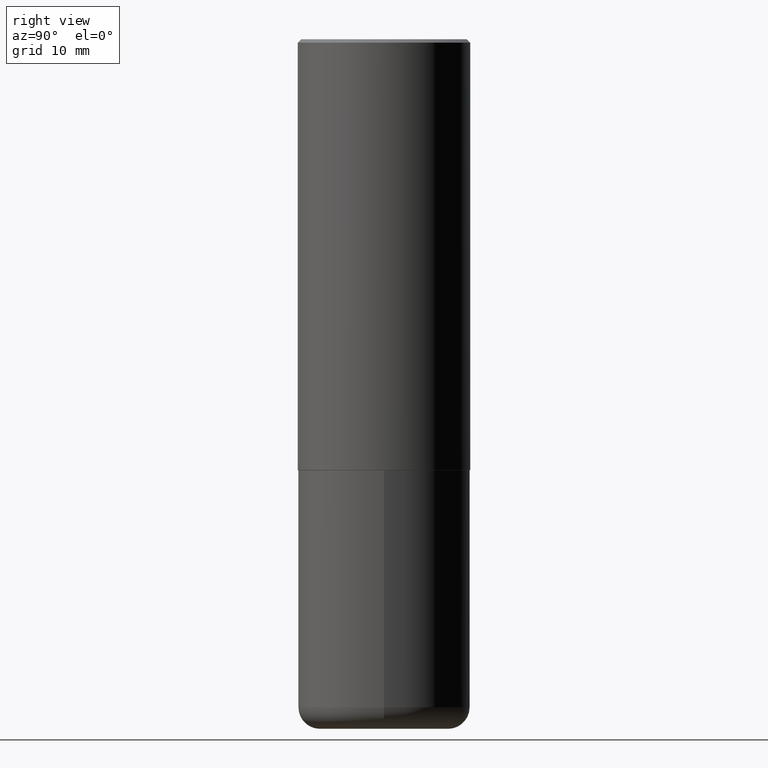
[diagram: clean part render]
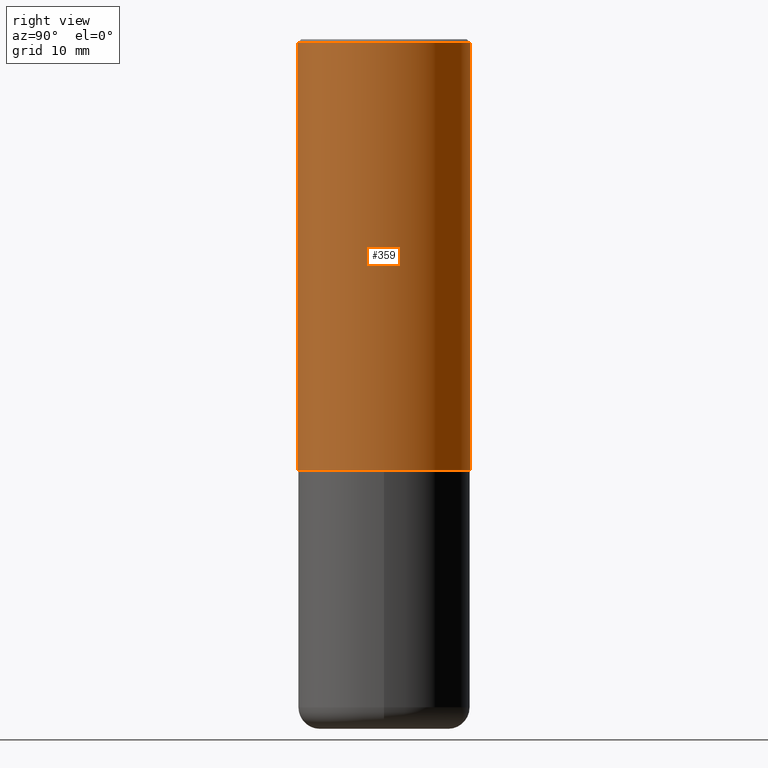
[diagram: same view with one face highlighted and labeled with its STEP entity id]
A machine part, right view. The second image highlights one B-rep face of the part: STEP entity #359.
In plain terms, the highlighted cylindrical surface (partial cylindrical patch) has radius 12.7 mm, axis along (-0, 0, 1).
Its self-contained STEP definition (entity closure, byte-faithful):
#2 = CARTESIAN_POINT ( 'NONE',  ( -3.491481338843073796E-15, -0.5000000000000089928, -2.498999999999998778 ) ) ;
#14 = CARTESIAN_POINT ( 'NONE',  ( -3.491481338843133750E-15, -0.5000000000000001110, 1.746402474411057438E-15 ) ) ;
#15 = VERTEX_POINT ( 'NONE', #231 ) ;
#29 = DIRECTION ( 'NONE',  ( -2.444544534276841438E-29, 3.492804948822114088E-15, 1.000000000000000000 ) ) ;
#40 = DIRECTION ( 'NONE',  ( -6.982962677686265922E-15, -1.000000000000000000, 3.491643216902136408E-15 ) ) ;
#45 = CARTESIAN_POINT ( 'NONE',  ( 4.889089068553708695E-31, -6.985609897644266091E-17, -0.02000000000000010797 ) ) ;
#50 = DIRECTION ( 'NONE',  ( -6.982962677686266711E-15, -1.000000000000000000, 3.278217592397114284E-15 ) ) ;
#59 = EDGE_CURVE ( 'NONE', #308, #15, #335, .T. ) ;
#70 = EDGE_CURVE ( 'NONE', #308, #354, #402, .T. ) ;
#86 = ORIENTED_EDGE ( 'NONE', *, *, #70, .F. ) ;
#98 = ORIENTED_EDGE ( 'NONE', *, *, #324, .T. ) ;
#108 = CARTESIAN_POINT ( 'NONE',  ( 0.000000000000000000, 0.000000000000000000, 0.000000000000000000 ) ) ;
#118 = DIRECTION ( 'NONE',  ( -2.444544534276841158E-29, 3.492804948822114482E-15, 1.000000000000000000 ) ) ;
#139 = CARTESIAN_POINT ( 'NONE',  ( 3.552713678800501718E-15, 0.5000000000000001110, -1.746402474411057438E-15 ) ) ;
#185 = DIRECTION ( 'NONE',  ( -2.444544534276841438E-29, 3.492804948822114088E-15, 1.000000000000000000 ) ) ;
#195 = AXIS2_PLACEMENT_3D ( 'NONE', #108, #29, #242 ) ;
#196 = DIRECTION ( 'NONE',  ( -2.444544534276841158E-29, 3.492804948822114482E-15, 1.000000000000000000 ) ) ;
#208 = CARTESIAN_POINT ( 'NONE',  ( 3.491481338843133355E-15, 0.4999999999999999445, -0.02000000000000185310 ) ) ;
#225 = CARTESIAN_POINT ( 'NONE',  ( 6.108916791157827585E-29, -8.728519567106463881E-15, -2.499000000000000110 ) ) ;
#226 = EDGE_CURVE ( 'NONE', #354, #256, #336, .T. ) ;
#231 = CARTESIAN_POINT ( 'NONE',  ( 3.552713678800533273E-15, 0.4999999999999916178, -2.499000000000001886 ) ) ;
#233 = LINE ( 'NONE', #139, #390 ) ;
#242 = DIRECTION ( 'NONE',  ( -6.982962677686265922E-15, -1.000000000000000000, 3.492804948822114088E-15 ) ) ;
#256 = VERTEX_POINT ( 'NONE', #208 ) ;
#269 = CARTESIAN_POINT ( 'NONE',  ( -3.430248998885764992E-15, -0.5000000000000001110, -0.01999999999999835937 ) ) ;
#274 = ORIENTED_EDGE ( 'NONE', *, *, #226, .F. ) ;
#288 = EDGE_LOOP ( 'NONE', ( #343, #98, #274, #86 ) ) ;
#308 = VERTEX_POINT ( 'NONE', #2 ) ;
#320 = CYLINDRICAL_SURFACE ( 'NONE', #195, 0.5000000000000001110 ) ;
#324 = EDGE_CURVE ( 'NONE', #15, #256, #233, .T. ) ;
#335 = CIRCLE ( 'NONE', #404, 0.5000000000000002220 ) ;
#336 = CIRCLE ( 'NONE', #379, 0.5000000000000000000 ) ;
#340 = DIRECTION ( 'NONE',  ( -2.444544534276841438E-29, 3.492804948822114088E-15, 1.000000000000000000 ) ) ;
#343 = ORIENTED_EDGE ( 'NONE', *, *, #59, .T. ) ;
#349 = VECTOR ( 'NONE', #118, 39.37007874015748143 ) ;
#354 = VERTEX_POINT ( 'NONE', #269 ) ;
#359 = ADVANCED_FACE ( 'NONE', ( #414 ), #320, .T. ) ;
#379 = AXIS2_PLACEMENT_3D ( 'NONE', #45, #185, #40 ) ;
#390 = VECTOR ( 'NONE', #196, 39.37007874015748143 ) ;
#402 = LINE ( 'NONE', #14, #349 ) ;
#404 = AXIS2_PLACEMENT_3D ( 'NONE', #225, #340, #50 ) ;
#414 = FACE_OUTER_BOUND ( 'NONE', #288, .T. ) ;